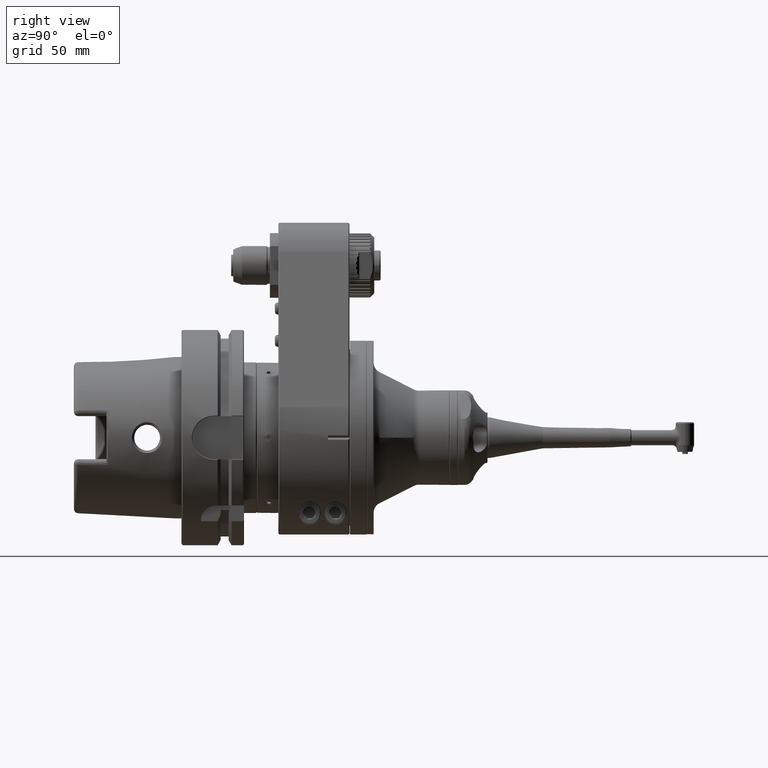
[diagram: clean part render]
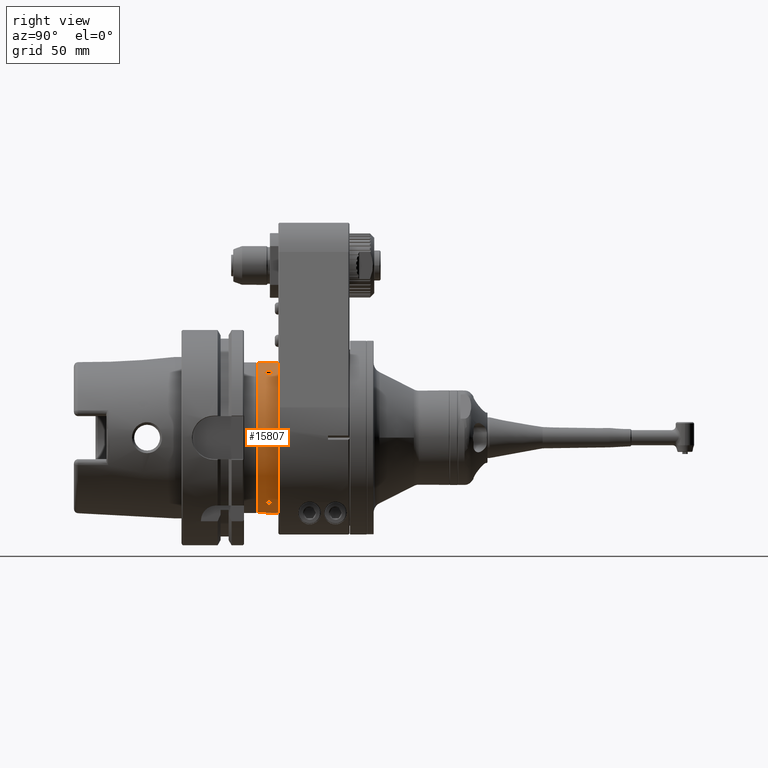
[diagram: same view with one face highlighted and labeled with its STEP entity id]
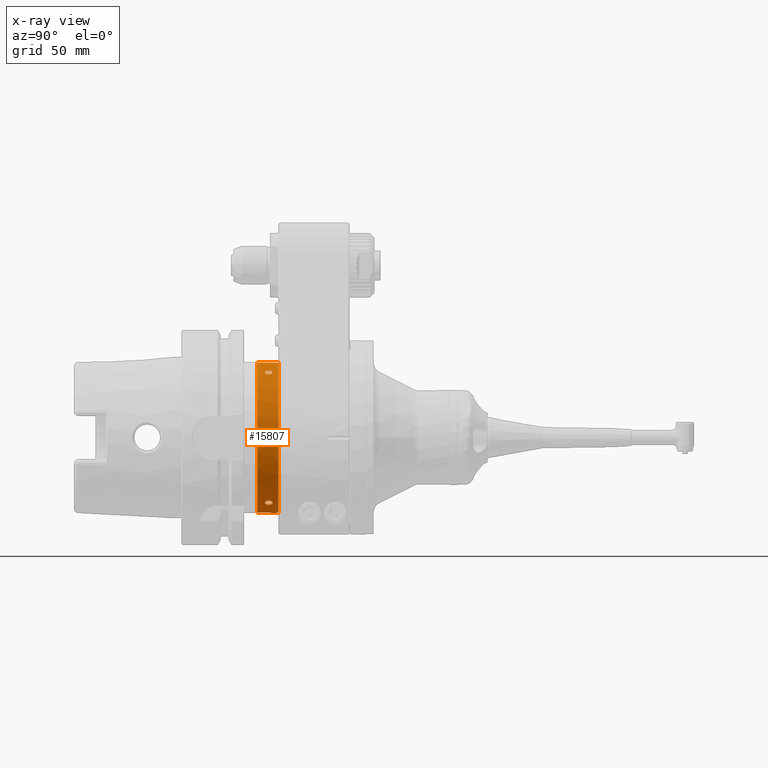
[diagram: x-ray of the same camera — body ghosted, the highlighted face saturated]
A machine part, right view. The second image highlights one B-rep face of the part: STEP entity #15807.
The next image is the same camera in x-ray: the body ghosted, the highlighted face saturated — about 0% of this face is hidden behind the body in this view.
In plain terms, the highlighted cylindrical surface (bore or boss wall) has radius 35 mm, axis along (0, 1, 0).
Its self-contained STEP definition (entity closure, byte-faithful):
#261=B_SPLINE_CURVE_WITH_KNOTS('',3,(#34498,#34499,#34500,#34501,#34502,
#34503,#34504,#34505,#34506,#34507,#34508,#34509,#34510,#34511,#34512,#34513,
#34514,#34515,#34516,#34517,#34518,#34519),.UNSPECIFIED.,.F.,.F.,(4,2,2,
2,2,2,2,2,2,2,4),(3.18527059466299E-5,0.0364021426824068,0.0739642590765193,
0.145595379017251,0.211201769634301,0.270477913188012,0.329729610222051,
0.389526671753702,0.460681832275728,0.509007877803127,0.556186606981776),
 .UNSPECIFIED.);
#262=B_SPLINE_CURVE_WITH_KNOTS('',3,(#34581,#34582,#34583,#34584,#34585,
#34586,#34587,#34588,#34589,#34590,#34591,#34592,#34593,#34594,#34595,#34596,
#34597,#34598,#34599,#34600,#34601,#34602),.UNSPECIFIED.,.F.,.F.,(4,2,2,
2,2,2,2,2,2,2,4),(3.18527063007448E-5,0.0364021426830109,0.073964259080203,
0.145595379027305,0.211201769644796,0.27047791318617,0.329729610207649,
0.38952667173139,0.460681832241208,0.509007877760784,0.556186606938202),
 .UNSPECIFIED.);
#269=B_SPLINE_CURVE_WITH_KNOTS('',3,(#34771,#34772,#34773,#34774,#34775,
#34776,#34777,#34778,#34779,#34780,#34781,#34782,#34783,#34784,#34785,#34786,
#34787,#34788,#34789,#34790),.UNSPECIFIED.,.F.,.F.,(4,2,2,2,2,2,2,2,2,4),
(3.19623823072239E-5,0.0710781441032911,0.138331762059328,0.199249713175933,
0.253463337707416,0.280618598549734,0.342315869599669,0.413579170136001,
0.452989020168033,0.484551900344419),.UNSPECIFIED.);
#270=B_SPLINE_CURVE_WITH_KNOTS('',3,(#34791,#34792,#34793,#34794,#34795,
#34796,#34797,#34798,#34799,#34800,#34801,#34802,#34803,#34804,#34805,#34806,
#34807,#34808,#34809,#34810,#34811,#34812),.UNSPECIFIED.,.F.,.F.,(4,2,2,
2,2,2,2,2,2,2,4),(2.08355603823118E-5,0.055145218950107,0.110008349002542,
0.182441860163828,0.255200873313432,0.291585468762988,0.364355406522232,
0.438177843075077,0.526261772112238,0.585860508728857,0.643977540634159),
 .UNSPECIFIED.);
#271=B_SPLINE_CURVE_WITH_KNOTS('',3,(#34815,#34816,#34817,#34818,#34819,
#34820,#34821,#34822,#34823,#34824,#34825,#34826,#34827,#34828,#34829,#34830,
#34831,#34832,#34833,#34834,#34835,#34836),.UNSPECIFIED.,.F.,.F.,(4,2,2,
2,2,2,2,2,2,2,4),(3.18527059499658E-5,0.0364021426824138,0.0739642590765483,
0.145595379017325,0.211201769634381,0.270477913188123,0.329729610222192,
0.389526671753814,0.460681832275834,0.509007877803275,0.556186606981961),
 .UNSPECIFIED.);
#272=B_SPLINE_CURVE_WITH_KNOTS('',3,(#34837,#34838,#34839,#34840,#34841,
#34842,#34843,#34844,#34845,#34846,#34847,#34848,#34849,#34850,#34851,#34852,
#34853,#34854,#34855,#34856,#34857,#34858),.UNSPECIFIED.,.F.,.F.,(4,2,2,
2,2,2,2,2,2,2,4),(3.18527063025162E-5,0.0364021426830279,0.0739642590802675,
0.145595379027454,0.211201769645015,0.27047791318649,0.329729610208068,
0.389526671731864,0.460681832241739,0.509007877761344,0.55618660693878),
 .UNSPECIFIED.);
#273=B_SPLINE_CURVE_WITH_KNOTS('',3,(#34861,#34862,#34863,#34864,#34865,
#34866,#34867,#34868,#34869,#34870,#34871,#34872,#34873,#34874,#34875,#34876,
#34877,#34878,#34879,#34880,#34881,#34882),.UNSPECIFIED.,.F.,.F.,(4,2,2,
2,2,2,2,2,2,2,4),(1.74782584528616E-5,0.0553472891500618,0.110195632901883,
0.182733622412185,0.255683203915886,0.292162697366789,0.365135586462819,
0.439146682116441,0.527453580150855,0.587185976653204,0.645439667455737),
 .UNSPECIFIED.);
#274=B_SPLINE_CURVE_WITH_KNOTS('',3,(#34883,#34884,#34885,#34886,#34887,
#34888,#34889,#34890,#34891,#34892,#34893,#34894,#34895,#34896,#34897,#34898,
#34899,#34900,#34901,#34902),.UNSPECIFIED.,.F.,.F.,(4,2,2,2,2,2,2,2,2,4),
(3.18681131328793E-5,0.0711049641529281,0.138375121400666,0.19934554231586,
0.253643689411755,0.280837672626704,0.341585807032831,0.409786467284119,
0.460897768256239,0.51175460419416),.UNSPECIFIED.);
#275=B_SPLINE_CURVE_WITH_KNOTS('',3,(#34905,#34906,#34907,#34908,#34909,
#34910,#34911,#34912,#34913,#34914,#34915,#34916,#34917,#34918,#34919,#34920,
#34921,#34922,#34923,#34924),.UNSPECIFIED.,.F.,.F.,(4,2,2,2,2,2,2,2,2,4),
(3.19623823076684E-5,0.0710781441033162,0.138331762059385,0.199249713175965,
0.253463337707427,0.280618598549735,0.342315869598999,0.413579170133061,
0.452989020163951,0.484551900339308),.UNSPECIFIED.);
#276=B_SPLINE_CURVE_WITH_KNOTS('',3,(#34925,#34926,#34927,#34928,#34929,
#34930,#34931,#34932,#34933,#34934,#34935,#34936,#34937,#34938,#34939,#34940,
#34941,#34942,#34943,#34944,#34945,#34946),.UNSPECIFIED.,.F.,.F.,(4,2,2,
2,2,2,2,2,2,2,4),(2.08355603949333E-5,0.0551452189501111,0.110008349001833,
0.182441860161529,0.255200873311195,0.291585468760671,0.364355406519829,
0.438177843072464,0.526261772108252,0.585860508722684,0.643977540624774),
 .UNSPECIFIED.);
#277=B_SPLINE_CURVE_WITH_KNOTS('',3,(#34949,#34950,#34951,#34952,#34953,
#34954,#34955,#34956,#34957,#34958,#34959,#34960,#34961,#34962,#34963,#34964,
#34965,#34966,#34967,#34968,#34969,#34970),.UNSPECIFIED.,.F.,.F.,(4,2,2,
2,2,2,2,2,2,2,4),(1.74782584537637E-5,0.0553472891497542,0.110195632901252,
0.182733622413057,0.255683203916134,0.292162697366703,0.36513558646184,
0.439146682114657,0.527453580148122,0.587185976649858,0.645439667451797),
 .UNSPECIFIED.);
#278=B_SPLINE_CURVE_WITH_KNOTS('',3,(#34971,#34972,#34973,#34974,#34975,
#34976,#34977,#34978,#34979,#34980,#34981,#34982,#34983,#34984,#34985,#34986,
#34987,#34988,#34989,#34990),.UNSPECIFIED.,.F.,.F.,(4,2,2,2,2,2,2,2,2,4),
(3.18681131313249E-5,0.0711049641529291,0.138375121400669,0.199345542315811,
0.253643689411589,0.280837672626518,0.341585807031414,0.409786467278439,
0.460897768248773,0.511754604184717),.UNSPECIFIED.);
#1496=LINE('',#34758,#2630);
#1497=LINE('',#34762,#2631);
#1498=LINE('',#34765,#2632);
#2630=VECTOR('',#21495,1.);
#2631=VECTOR('',#21498,1.);
#2632=VECTOR('',#21501,35.);
#3066=CYLINDRICAL_SURFACE('',#17461,35.);
#3197=FACE_BOUND('',#4918,.T.);
#3198=FACE_BOUND('',#4919,.T.);
#3199=FACE_BOUND('',#4920,.T.);
#3200=FACE_BOUND('',#4921,.T.);
#3201=FACE_BOUND('',#4922,.T.);
#3202=FACE_BOUND('',#4923,.T.);
#3914=FACE_OUTER_BOUND('',#4917,.T.);
#4917=EDGE_LOOP('',(#13540,#13541,#13542,#13543,#13544,#13545,#13546,#13547,
#13548));
#4918=EDGE_LOOP('',(#13549,#13550));
#4919=EDGE_LOOP('',(#13551,#13552));
#4920=EDGE_LOOP('',(#13553,#13554));
#4921=EDGE_LOOP('',(#13555,#13556));
#4922=EDGE_LOOP('',(#13557,#13558));
#4923=EDGE_LOOP('',(#13559,#13560));
#5886=CIRCLE('',#17462,35.);
#5887=CIRCLE('',#17463,35.);
#5888=CIRCLE('',#17464,35.);
#5889=CIRCLE('',#17465,35.);
#5890=CIRCLE('',#17466,35.);
#7201=VERTEX_POINT('',#34495);
#7202=VERTEX_POINT('',#34497);
#7216=VERTEX_POINT('',#34754);
#7217=VERTEX_POINT('',#34755);
#7218=VERTEX_POINT('',#34757);
#7219=VERTEX_POINT('',#34759);
#7220=VERTEX_POINT('',#34761);
#7221=VERTEX_POINT('',#34764);
#7222=VERTEX_POINT('',#34766);
#7223=VERTEX_POINT('',#34769);
#7224=VERTEX_POINT('',#34770);
#7225=VERTEX_POINT('',#34813);
#7226=VERTEX_POINT('',#34814);
#7227=VERTEX_POINT('',#34859);
#7228=VERTEX_POINT('',#34860);
#7229=VERTEX_POINT('',#34903);
#7230=VERTEX_POINT('',#34904);
#7231=VERTEX_POINT('',#34947);
#7232=VERTEX_POINT('',#34948);
#9353=EDGE_CURVE('',#7202,#7201,#261,.T.);
#9355=EDGE_CURVE('',#7201,#7202,#262,.T.);
#9376=EDGE_CURVE('',#7216,#7217,#5886,.T.);
#9377=EDGE_CURVE('',#7218,#7216,#1496,.T.);
#9378=EDGE_CURVE('',#7219,#7218,#5887,.T.);
#9379=EDGE_CURVE('',#7219,#7220,#1497,.T.);
#9380=EDGE_CURVE('',#7217,#7220,#5888,.T.);
#9381=EDGE_CURVE('',#7217,#7221,#1498,.T.);
#9382=EDGE_CURVE('',#7221,#7222,#5889,.T.);
#9383=EDGE_CURVE('',#7222,#7221,#5890,.T.);
#9384=EDGE_CURVE('',#7223,#7224,#269,.T.);
#9385=EDGE_CURVE('',#7224,#7223,#270,.T.);
#9386=EDGE_CURVE('',#7225,#7226,#271,.T.);
#9387=EDGE_CURVE('',#7226,#7225,#272,.T.);
#9388=EDGE_CURVE('',#7227,#7228,#273,.T.);
#9389=EDGE_CURVE('',#7228,#7227,#274,.T.);
#9390=EDGE_CURVE('',#7229,#7230,#275,.T.);
#9391=EDGE_CURVE('',#7230,#7229,#276,.T.);
#9392=EDGE_CURVE('',#7231,#7232,#277,.T.);
#9393=EDGE_CURVE('',#7232,#7231,#278,.T.);
#13540=ORIENTED_EDGE('',*,*,#9376,.F.);
#13541=ORIENTED_EDGE('',*,*,#9377,.F.);
#13542=ORIENTED_EDGE('',*,*,#9378,.F.);
#13543=ORIENTED_EDGE('',*,*,#9379,.T.);
#13544=ORIENTED_EDGE('',*,*,#9380,.F.);
#13545=ORIENTED_EDGE('',*,*,#9381,.T.);
#13546=ORIENTED_EDGE('',*,*,#9382,.T.);
#13547=ORIENTED_EDGE('',*,*,#9383,.T.);
#13548=ORIENTED_EDGE('',*,*,#9381,.F.);
#13549=ORIENTED_EDGE('',*,*,#9384,.T.);
#13550=ORIENTED_EDGE('',*,*,#9385,.T.);
#13551=ORIENTED_EDGE('',*,*,#9386,.T.);
#13552=ORIENTED_EDGE('',*,*,#9387,.T.);
#13553=ORIENTED_EDGE('',*,*,#9388,.T.);
#13554=ORIENTED_EDGE('',*,*,#9389,.T.);
#13555=ORIENTED_EDGE('',*,*,#9353,.T.);
#13556=ORIENTED_EDGE('',*,*,#9355,.T.);
#13557=ORIENTED_EDGE('',*,*,#9390,.T.);
#13558=ORIENTED_EDGE('',*,*,#9391,.T.);
#13559=ORIENTED_EDGE('',*,*,#9392,.T.);
#13560=ORIENTED_EDGE('',*,*,#9393,.T.);
#15807=ADVANCED_FACE('',(#3914,#3197,#3198,#3199,#3200,#3201,#3202),#3066,
 .T.);
#17461=AXIS2_PLACEMENT_3D('',#34753,#21491,#21492);
#17462=AXIS2_PLACEMENT_3D('',#34756,#21493,#21494);
#17463=AXIS2_PLACEMENT_3D('',#34760,#21496,#21497);
#17464=AXIS2_PLACEMENT_3D('',#34763,#21499,#21500);
#17465=AXIS2_PLACEMENT_3D('',#34767,#21502,#21503);
#17466=AXIS2_PLACEMENT_3D('',#34768,#21504,#21505);
#21491=DIRECTION('center_axis',(0.,1.,0.));
#21492=DIRECTION('ref_axis',(0.866025403784429,0.,0.500000000000017));
#21493=DIRECTION('center_axis',(0.,1.,0.));
#21494=DIRECTION('ref_axis',(-0.0571428571428572,0.,-0.998366011980351));
#21495=DIRECTION('',(0.,1.,0.));
#21496=DIRECTION('center_axis',(0.,1.,0.));
#21497=DIRECTION('ref_axis',(0.0571428571428572,0.,-0.998366011980351));
#21498=DIRECTION('',(0.,1.,0.));
#21499=DIRECTION('center_axis',(0.,1.,0.));
#21500=DIRECTION('ref_axis',(-0.0571428571428572,0.,-0.998366011980351));
#21501=DIRECTION('',(0.,-1.,0.));
#21502=DIRECTION('center_axis',(0.,1.,0.));
#21503=DIRECTION('ref_axis',(0.866025403784429,0.,0.500000000000017));
#21504=DIRECTION('center_axis',(0.,1.,0.));
#21505=DIRECTION('ref_axis',(0.866025403784429,0.,0.500000000000017));
#34495=CARTESIAN_POINT('',(15.8637257306997,-12.5000001981343,-31.1984327457779));
#34497=CARTESIAN_POINT('',(19.0867724507528,-12.4999998018656,-29.3376058543446));
#34498=CARTESIAN_POINT('Ctrl Pts',(19.0870952570168,-12.4999996391597,-29.3373958396032));
#34499=CARTESIAN_POINT('Ctrl Pts',(19.0870487294581,-12.3787646004269,-29.3374261107271));
#34500=CARTESIAN_POINT('Ctrl Pts',(19.0765279758062,-12.2571064872472,-29.3442781244858));
#34501=CARTESIAN_POINT('Ctrl Pts',(19.035526607172,-12.0153749482575,-29.3708927948349));
#34502=CARTESIAN_POINT('Ctrl Pts',(19.0042892602779,-11.8948129765833,-29.3911448140096));
#34503=CARTESIAN_POINT('Ctrl Pts',(18.8844959382057,-11.559428125439,-29.4683653237602));
#34504=CARTESIAN_POINT('Ctrl Pts',(18.7701348385507,-11.3594772313313,-29.5416804792462));
#34505=CARTESIAN_POINT('Ctrl Pts',(18.4946369193482,-11.0368369067039,-29.7148549400748));
#34506=CARTESIAN_POINT('Ctrl Pts',(18.3232816174536,-10.8912835220462,-29.8214637559547));
#34507=CARTESIAN_POINT('Ctrl Pts',(17.916546743802,-10.6969003969063,-30.0673951480377));
#34508=CARTESIAN_POINT('Ctrl Pts',(17.7088313683342,-10.6497418116776,-30.1903376099477));
#34509=CARTESIAN_POINT('Ctrl Pts',(17.2875004176122,-10.6502651980211,-30.4335583514486));
#34510=CARTESIAN_POINT('Ctrl Pts',(17.0775550327571,-10.6979256194026,-30.5517241087551));
#34511=CARTESIAN_POINT('Ctrl Pts',(16.6811183530208,-10.8841169118027,-30.7699847350976));
#34512=CARTESIAN_POINT('Ctrl Pts',(16.4995459148085,-11.0212928473367,-30.867378293489));
#34513=CARTESIAN_POINT('Ctrl Pts',(16.1638212106934,-11.3996202863482,-31.0447007580497));
#34514=CARTESIAN_POINT('Ctrl Pts',(16.0562358284755,-11.6167350350512,-31.0998773639482));
#34515=CARTESIAN_POINT('Ctrl Pts',(15.9497689785468,-11.8991265025051,-31.1545697005922));
#34516=CARTESIAN_POINT('Ctrl Pts',(15.9172255648133,-12.0177974284735,-31.1711808899257));
#34517=CARTESIAN_POINT('Ctrl Pts',(15.8745400947412,-12.2581699470093,-31.1929404987322));
#34518=CARTESIAN_POINT('Ctrl Pts',(15.8640273718801,-12.3789443166372,-31.1982793683629));
#34519=CARTESIAN_POINT('Ctrl Pts',(15.8640690119373,-12.5000000354284,-31.1982581947212));
#34581=CARTESIAN_POINT('Ctrl Pts',(15.8633824494621,-12.5000003608403,-31.1986072968345));
#34582=CARTESIAN_POINT('Ctrl Pts',(15.8634319288059,-12.6212353995739,-31.1985821383476));
#34583=CARTESIAN_POINT('Ctrl Pts',(15.8746263236218,-12.7428935127624,-31.1928969052934));
#34584=CARTESIAN_POINT('Ctrl Pts',(15.9181759885768,-12.9846250517447,-31.1706960136397));
#34585=CARTESIAN_POINT('Ctrl Pts',(15.9513334251062,-13.1051870234197,-31.1537696872704));
#34586=CARTESIAN_POINT('Ctrl Pts',(16.0781050092787,-13.4405718745698,-31.0886358820278));
#34587=CARTESIAN_POINT('Ctrl Pts',(16.1987783462417,-13.6405227686771,-31.0262538422637));
#34588=CARTESIAN_POINT('Ctrl Pts',(16.486500788188,-13.9631630932841,-30.8742528759689));
#34589=CARTESIAN_POINT('Ctrl Pts',(16.6645043819524,-14.1087164779524,-30.7791592393967));
#34590=CARTESIAN_POINT('Ctrl Pts',(17.0808546519339,-14.3030996030938,-30.5498822022375));
#34591=CARTESIAN_POINT('Ctrl Pts',(17.2911836348838,-14.3502581883251,-30.4314666412822));
#34592=CARTESIAN_POINT('Ctrl Pts',(17.7124844510981,-14.3497348019843,-30.1881937053147));
#34593=CARTESIAN_POINT('Ctrl Pts',(17.9197916912023,-14.3020743806033,-30.0654585472806));
#34594=CARTESIAN_POINT('Ctrl Pts',(18.3070292781214,-14.1158830882152,-29.8312646248132));
#34595=CARTESIAN_POINT('Ctrl Pts',(18.482160792963,-13.978707152683,-29.722715059888));
#34596=CARTESIAN_POINT('Ctrl Pts',(18.8035889039929,-13.600379713676,-29.5206301697262));
#34597=CARTESIAN_POINT('Ctrl Pts',(18.9051659375053,-13.3832649649784,-29.4550467985985));
#34598=CARTESIAN_POINT('Ctrl Pts',(19.0057643154029,-13.1008734975193,-29.3901899702167));
#34599=CARTESIAN_POINT('Ctrl Pts',(19.0364217342231,-12.9822025715473,-29.3703121418621));
#34600=CARTESIAN_POINT('Ctrl Pts',(19.0766088432686,-12.7418300529884,-29.3442252448061));
#34601=CARTESIAN_POINT('Ctrl Pts',(19.086488801421,-12.6210556833701,-29.3377903945647));
#34602=CARTESIAN_POINT('Ctrl Pts',(19.0864496444889,-12.4999999645715,-29.3378158690859));
#34753=CARTESIAN_POINT('Origin',(0.,-18.85,2.285324009082E-14));
#34754=CARTESIAN_POINT('',(-2.,-8.,-34.94281041931));
#34755=CARTESIAN_POINT('',(-30.310889132455,-8.,-17.5000000000006));
#34756=CARTESIAN_POINT('Origin',(0.,-8.,2.285324009082E-14));
#34757=CARTESIAN_POINT('',(-2.,-9.,-34.94281041931));
#34758=CARTESIAN_POINT('',(-2.,-9.,-34.94281041931));
#34759=CARTESIAN_POINT('',(2.,-9.,-34.94281041931));
#34760=CARTESIAN_POINT('Origin',(0.,-9.,2.285324009082E-14));
#34761=CARTESIAN_POINT('',(2.,-8.,-34.94281041931));
#34762=CARTESIAN_POINT('',(2.,-9.,-34.94281041931));
#34763=CARTESIAN_POINT('Origin',(0.,-8.,2.285324009082E-14));
#34764=CARTESIAN_POINT('',(-30.310889132455,-17.79999673147,-17.5000000000006));
#34765=CARTESIAN_POINT('',(-30.310889132455,-18.85,-17.5000000000006));
#34766=CARTESIAN_POINT('',(30.31088913246,-17.79999673147,17.5));
#34767=CARTESIAN_POINT('Origin',(0.,-17.79999673147,2.285324009082E-14));
#34768=CARTESIAN_POINT('Origin',(0.,-17.79999673147,2.285324009082E-14));
#34769=CARTESIAN_POINT('',(-34.9504995080757,-12.499999630987,-1.86080197631837));
#34770=CARTESIAN_POINT('',(-34.950500565016,-12.4999996411465,1.86078214509157));
#34771=CARTESIAN_POINT('Ctrl Pts',(-34.950477048689,-12.4999994530855,-1.8612238095038));
#34772=CARTESIAN_POINT('Ctrl Pts',(-34.9504835154797,-12.2631689596259,
-1.86110237466178));
#34773=CARTESIAN_POINT('Ctrl Pts',(-34.9531350429122,-12.0153405241427,
-1.81329910251574));
#34774=CARTESIAN_POINT('Ctrl Pts',(-34.9625302693398,-11.5619045701655,
-1.62178045911963));
#34775=CARTESIAN_POINT('Ctrl Pts',(-34.9688430283354,-11.3614905413128,
-1.48626842043907));
#34776=CARTESIAN_POINT('Ctrl Pts',(-34.9810425090177,-11.0392351171275,
-1.16208398610917));
#34777=CARTESIAN_POINT('Ctrl Pts',(-34.9877184703275,-10.8926447383117,
-0.960659343513235));
#34778=CARTESIAN_POINT('Ctrl Pts',(-34.9973528271568,-10.69786608224,-0.485218350219374));
#34779=CARTESIAN_POINT('Ctrl Pts',(-34.9999810584443,-10.6503161824768,
-0.244972219121741));
#34780=CARTESIAN_POINT('Ctrl Pts',(-35.0000093289152,-10.6498402301652,
0.118620561119193));
#34781=CARTESIAN_POINT('Ctrl Pts',(-34.9993798873961,-10.661528955052,0.239932462510429));
#34782=CARTESIAN_POINT('Ctrl Pts',(-34.995387052904,-10.7375552708006,0.629269733741858));
#34783=CARTESIAN_POINT('Ctrl Pts',(-34.9900075276982,-10.8434805887279,
0.854524394146732));
#34784=CARTESIAN_POINT('Ctrl Pts',(-34.9788697447253,-11.0931735862729,
1.2328075379017));
#34785=CARTESIAN_POINT('Ctrl Pts',(-34.9720164766439,-11.2642471721499,
1.40598971852487));
#34786=CARTESIAN_POINT('Ctrl Pts',(-34.9626444523335,-11.5779518755563,
1.61840205214398));
#34787=CARTESIAN_POINT('Ctrl Pts',(-34.9581108191775,-11.7427112518436,
1.71317440593236));
#34788=CARTESIAN_POINT('Ctrl Pts',(-34.9519815054583,-12.1355944194539,
1.83353797556643));
#34789=CARTESIAN_POINT('Ctrl Pts',(-34.9505139966159,-12.3172238302253,
1.86052986393553));
#34790=CARTESIAN_POINT('Ctrl Pts',(-34.950516510764,-12.4999996163523,1.86048263383738));
#34791=CARTESIAN_POINT('Ctrl Pts',(-34.9504893409757,-12.4999996585988,
1.86099296783787));
#34792=CARTESIAN_POINT('Ctrl Pts',(-34.9504884755683,-12.6837474284534,
1.86100922067443));
#34793=CARTESIAN_POINT('Ctrl Pts',(-34.9520213741184,-12.8672676266707,
1.83279760209075));
#34794=CARTESIAN_POINT('Ctrl Pts',(-34.9575239478522,-13.2174772843669,
1.72465555171186));
#34795=CARTESIAN_POINT('Ctrl Pts',(-34.9614581685939,-13.3831049934662,
1.64532180531264));
#34796=CARTESIAN_POINT('Ctrl Pts',(-34.9720049824187,-13.7352971773744,
1.40620619181317));
#34797=CARTESIAN_POINT('Ctrl Pts',(-34.9788916079813,-13.9070803487411,
1.23202472333098));
#34798=CARTESIAN_POINT('Ctrl Pts',(-34.9908016024159,-14.1745258261827,
0.827594869135722));
#34799=CARTESIAN_POINT('Ctrl Pts',(-34.9956632095359,-14.2677009155518,
0.60044431579424));
#34800=CARTESIAN_POINT('Ctrl Pts',(-34.9993641476223,-14.3381775287248,
0.242399381943312));
#34801=CARTESIAN_POINT('Ctrl Pts',(-35.0000031889335,-14.3500063236869,
0.120728234629732));
#34802=CARTESIAN_POINT('Ctrl Pts',(-34.9999935857192,-14.3499304850854,
-0.244221912226578));
#34803=CARTESIAN_POINT('Ctrl Pts',(-34.9973694440576,-14.302465914789,-0.484313214537465));
#34804=CARTESIAN_POINT('Ctrl Pts',(-34.988207984965,-14.1171851455121,-0.936588778960121));
#34805=CARTESIAN_POINT('Ctrl Pts',(-34.9817713989937,-13.980176450906,-1.14274357210531));
#34806=CARTESIAN_POINT('Ctrl Pts',(-34.967438196524,-13.6013625095778,-1.52356544941006));
#34807=CARTESIAN_POINT('Ctrl Pts',(-34.9614179207507,-13.3840127550484,
-1.64450104664918));
#34808=CARTESIAN_POINT('Ctrl Pts',(-34.9555321136317,-13.1007763499867,
-1.76440406169629));
#34809=CARTESIAN_POINT('Ctrl Pts',(-34.9536453717128,-12.9820174019721,
-1.80090619245004));
#34810=CARTESIAN_POINT('Ctrl Pts',(-34.9511480917957,-12.7416745993173,
-1.84873093849571));
#34811=CARTESIAN_POINT('Ctrl Pts',(-34.9505151545311,-12.6209661760245,
-1.86050811189774));
#34812=CARTESIAN_POINT('Ctrl Pts',(-34.9505172454797,-12.4999997714854,
-1.86046883161861));
#34813=CARTESIAN_POINT('',(-19.0867724507529,-12.4999998018656,29.3376058543446));
#34814=CARTESIAN_POINT('',(-15.8637257306996,-12.5000001981343,31.1984327457779));
#34815=CARTESIAN_POINT('Ctrl Pts',(-19.0870952570168,-12.4999996391596,
29.3373958396032));
#34816=CARTESIAN_POINT('Ctrl Pts',(-19.0870487294581,-12.3787646004269,
29.3374261107271));
#34817=CARTESIAN_POINT('Ctrl Pts',(-19.0765279758062,-12.2571064872472,
29.3442781244858));
#34818=CARTESIAN_POINT('Ctrl Pts',(-19.035526607172,-12.0153749482575,29.3708927948349));
#34819=CARTESIAN_POINT('Ctrl Pts',(-19.0042892602779,-11.8948129765833,
29.3911448140097));
#34820=CARTESIAN_POINT('Ctrl Pts',(-18.8844959382057,-11.5594281254389,
29.4683653237602));
#34821=CARTESIAN_POINT('Ctrl Pts',(-18.7701348385507,-11.3594772313312,
29.5416804792463));
#34822=CARTESIAN_POINT('Ctrl Pts',(-18.4946369193483,-11.036836906704,29.7148549400748));
#34823=CARTESIAN_POINT('Ctrl Pts',(-18.3232816174537,-10.8912835220462,
29.8214637559547));
#34824=CARTESIAN_POINT('Ctrl Pts',(-17.9165467438019,-10.6969003969062,
30.0673951480379));
#34825=CARTESIAN_POINT('Ctrl Pts',(-17.7088313683341,-10.6497418116776,
30.1903376099477));
#34826=CARTESIAN_POINT('Ctrl Pts',(-17.2875004176123,-10.6502651980211,
30.4335583514485));
#34827=CARTESIAN_POINT('Ctrl Pts',(-17.0775550327573,-10.6979256194024,
30.5517241087551));
#34828=CARTESIAN_POINT('Ctrl Pts',(-16.6811183530208,-10.8841169118026,
30.7699847350976));
#34829=CARTESIAN_POINT('Ctrl Pts',(-16.4995459148085,-11.0212928473366,
30.867378293489));
#34830=CARTESIAN_POINT('Ctrl Pts',(-16.1638212106934,-11.3996202863482,
31.0447007580498));
#34831=CARTESIAN_POINT('Ctrl Pts',(-16.0562358284755,-11.6167350350513,
31.0998773639483));
#34832=CARTESIAN_POINT('Ctrl Pts',(-15.9497689785468,-11.8991265025051,
31.1545697005922));
#34833=CARTESIAN_POINT('Ctrl Pts',(-15.9172255648132,-12.0177974284736,
31.1711808899257));
#34834=CARTESIAN_POINT('Ctrl Pts',(-15.8745400947412,-12.2581699470093,
31.1929404987322));
#34835=CARTESIAN_POINT('Ctrl Pts',(-15.8640273718801,-12.3789443166372,
31.198279368363));
#34836=CARTESIAN_POINT('Ctrl Pts',(-15.8640690119372,-12.5000000354284,
31.1982581947213));
#34837=CARTESIAN_POINT('Ctrl Pts',(-15.8633824494621,-12.5000003608403,
31.1986072968346));
#34838=CARTESIAN_POINT('Ctrl Pts',(-15.8634319288059,-12.6212353995739,
31.1985821383476));
#34839=CARTESIAN_POINT('Ctrl Pts',(-15.8746263236218,-12.7428935127625,
31.1928969052935));
#34840=CARTESIAN_POINT('Ctrl Pts',(-15.9181759885768,-12.9846250517446,
31.1706960136397));
#34841=CARTESIAN_POINT('Ctrl Pts',(-15.9513334251062,-13.1051870234197,
31.1537696872705));
#34842=CARTESIAN_POINT('Ctrl Pts',(-16.0781050092787,-13.4405718745698,
31.0886358820278));
#34843=CARTESIAN_POINT('Ctrl Pts',(-16.1987783462417,-13.6405227686772,
31.0262538422637));
#34844=CARTESIAN_POINT('Ctrl Pts',(-16.486500788188,-13.9631630932841,30.874252875969));
#34845=CARTESIAN_POINT('Ctrl Pts',(-16.6645043819524,-14.1087164779524,
30.7791592393968));
#34846=CARTESIAN_POINT('Ctrl Pts',(-17.080854651934,-14.3030996030939,30.5498822022375));
#34847=CARTESIAN_POINT('Ctrl Pts',(-17.2911836348838,-14.3502581883251,
30.4314666412822));
#34848=CARTESIAN_POINT('Ctrl Pts',(-17.712484451098,-14.3497348019843,30.1881937053147));
#34849=CARTESIAN_POINT('Ctrl Pts',(-17.9197916912022,-14.3020743806034,
30.0654585472807));
#34850=CARTESIAN_POINT('Ctrl Pts',(-18.3070292781215,-14.1158830882152,
29.8312646248132));
#34851=CARTESIAN_POINT('Ctrl Pts',(-18.482160792963,-13.978707152683,29.722715059888));
#34852=CARTESIAN_POINT('Ctrl Pts',(-18.803588903993,-13.6003797136761,29.5206301697262));
#34853=CARTESIAN_POINT('Ctrl Pts',(-18.9051659375054,-13.3832649649785,
29.4550467985985));
#34854=CARTESIAN_POINT('Ctrl Pts',(-19.0057643154029,-13.1008734975193,
29.3901899702167));
#34855=CARTESIAN_POINT('Ctrl Pts',(-19.0364217342231,-12.9822025715473,
29.3703121418621));
#34856=CARTESIAN_POINT('Ctrl Pts',(-19.0766088432687,-12.7418300529884,
29.3442252448061));
#34857=CARTESIAN_POINT('Ctrl Pts',(-19.0864888014211,-12.6210556833701,
29.3377903945647));
#34858=CARTESIAN_POINT('Ctrl Pts',(-19.0864496444889,-12.4999999645715,
29.3378158690859));
#34859=CARTESIAN_POINT('',(15.8638764454773,-12.5000005512585,31.1983561117099));
#34860=CARTESIAN_POINT('',(19.0867500527332,-12.5000003552244,29.3376204264053));
#34861=CARTESIAN_POINT('Ctrl Pts',(15.8637133528312,-12.500000513418,31.1984390420291));
#34862=CARTESIAN_POINT('Ctrl Pts',(15.8636990733624,-12.3155682170916,31.1984463028218));
#34863=CARTESIAN_POINT('Ctrl Pts',(15.8888303282584,-12.1317757719449,31.1857026931762));
#34864=CARTESIAN_POINT('Ctrl Pts',(15.985637379186,-11.7811249485307,31.1361899978587));
#34865=CARTESIAN_POINT('Ctrl Pts',(16.0562915777425,-11.6160603194448,31.0999375188259));
#34866=CARTESIAN_POINT('Ctrl Pts',(16.2685689435502,-11.2642274257483,30.9895502888459));
#34867=CARTESIAN_POINT('Ctrl Pts',(16.4228623129554,-11.0926027440004,30.9084173887881));
#34868=CARTESIAN_POINT('Ctrl Pts',(16.7789614499093,-10.8253063759883,30.7165686163151));
#34869=CARTESIAN_POINT('Ctrl Pts',(16.9781197041411,-10.7321924752516,30.6071954890569));
#34870=CARTESIAN_POINT('Ctrl Pts',(17.2900094149281,-10.6617879420451,30.4313952884602));
#34871=CARTESIAN_POINT('Ctrl Pts',(17.395684683828,-10.6499780912733,30.3711203024888));
#34872=CARTESIAN_POINT('Ctrl Pts',(17.7117247422975,-10.6501019422287,30.1886403369981));
#34873=CARTESIAN_POINT('Ctrl Pts',(17.9183445533407,-10.6976034288396,30.0663159576823));
#34874=CARTESIAN_POINT('Ctrl Pts',(18.3053968887711,-10.882945772207,29.8322697196292));
#34875=CARTESIAN_POINT('Ctrl Pts',(18.4806837186713,-11.0199637619296,29.7236355419428));
#34876=CARTESIAN_POINT('Ctrl Pts',(18.8032464324207,-11.3987786654595,29.5208551598909));
#34877=CARTESIAN_POINT('Ctrl Pts',(18.9049510830728,-11.6161230467451,29.4551854426468));
#34878=CARTESIAN_POINT('Ctrl Pts',(19.0058176101693,-11.8993436766261,29.3901555257972));
#34879=CARTESIAN_POINT('Ctrl Pts',(19.0364722168175,-12.0180713669705,29.3702794149571));
#34880=CARTESIAN_POINT('Ctrl Pts',(19.0766256975269,-12.258365139105,29.344214261916));
#34881=CARTESIAN_POINT('Ctrl Pts',(19.0865040416201,-12.3790524020513,29.3377804796278));
#34882=CARTESIAN_POINT('Ctrl Pts',(19.0864703802306,-12.5000002138496,29.3378023789203));
#34883=CARTESIAN_POINT('Ctrl Pts',(19.0871034196069,-12.5000005338517,29.3373905289689));
#34884=CARTESIAN_POINT('Ctrl Pts',(19.0870017449956,-12.7369206743721,29.3374566791542));
#34885=CARTESIAN_POINT('Ctrl Pts',(19.0469054805378,-12.9848003492369,29.3636697781654));
#34886=CARTESIAN_POINT('Ctrl Pts',(18.8856846825682,-13.4382659674928,29.4676027843206));
#34887=CARTESIAN_POINT('Ctrl Pts',(18.7714642450753,-13.6386747615835,29.5408382315692));
#34888=CARTESIAN_POINT('Ctrl Pts',(18.4966513801535,-13.9610347398811,29.7135946154021));
#34889=CARTESIAN_POINT('Ctrl Pts',(18.3255263499126,-14.1075230144188,29.8200991862912));
#34890=CARTESIAN_POINT('Ctrl Pts',(17.9187176205836,-14.3021873887646,30.0660890065058));
#34891=CARTESIAN_POINT('Ctrl Pts',(17.7119792786569,-14.3497066844627,30.1884823656415));
#34892=CARTESIAN_POINT('Ctrl Pts',(17.3971472808481,-14.350148439967,30.3702812703084));
#34893=CARTESIAN_POINT('Ctrl Pts',(17.2917944066647,-14.3384523118297,30.4303795739301));
#34894=CARTESIAN_POINT('Ctrl Pts',(16.9566371819784,-14.2633039128513,30.6193254532623));
#34895=CARTESIAN_POINT('Ctrl Pts',(16.7591277679082,-14.1596692462045,30.7272547956885));
#34896=CARTESIAN_POINT('Ctrl Pts',(16.4219733924724,-13.9069281187067,30.908895438404));
#34897=CARTESIAN_POINT('Ctrl Pts',(16.2686444905561,-13.7360626908713,30.9895134380388));
#34898=CARTESIAN_POINT('Ctrl Pts',(16.0561867214271,-13.3829794938095,31.0999902123351));
#34899=CARTESIAN_POINT('Ctrl Pts',(15.9843536669177,-13.2164464425771,31.1368490910323));
#34900=CARTESIAN_POINT('Ctrl Pts',(15.8881506734197,-12.8651969915635,31.1860477218398));
#34901=CARTESIAN_POINT('Ctrl Pts',(15.8640363511877,-12.68332859763,31.1982748025683));
#34902=CARTESIAN_POINT('Ctrl Pts',(15.8641179065721,-12.5000006072819,31.1982333321357));
#34903=CARTESIAN_POINT('',(34.9504995080757,-12.4999996309869,1.86080197631839));
#34904=CARTESIAN_POINT('',(34.950500565016,-12.4999996411465,-1.86078214509141));
#34905=CARTESIAN_POINT('Ctrl Pts',(34.950477048689,-12.4999994530855,1.8612238095038));
#34906=CARTESIAN_POINT('Ctrl Pts',(34.9504835154797,-12.2631689596258,1.86110237466178));
#34907=CARTESIAN_POINT('Ctrl Pts',(34.9531350429122,-12.0153405241426,1.81329910251571));
#34908=CARTESIAN_POINT('Ctrl Pts',(34.9625302693398,-11.5619045701655,1.62178045911961));
#34909=CARTESIAN_POINT('Ctrl Pts',(34.9688430283354,-11.3614905413128,1.48626842043907));
#34910=CARTESIAN_POINT('Ctrl Pts',(34.9810425090177,-11.0392351171277,1.16208398610932));
#34911=CARTESIAN_POINT('Ctrl Pts',(34.9877184703275,-10.8926447383118,0.960659343513388));
#34912=CARTESIAN_POINT('Ctrl Pts',(34.9973528271568,-10.69786608224,0.485218350219396));
#34913=CARTESIAN_POINT('Ctrl Pts',(34.9999810584443,-10.6503161824768,0.24497221912173));
#34914=CARTESIAN_POINT('Ctrl Pts',(35.0000093289152,-10.6498402301652,-0.118620561119245));
#34915=CARTESIAN_POINT('Ctrl Pts',(34.9993798873961,-10.661528955052,-0.239932462510472));
#34916=CARTESIAN_POINT('Ctrl Pts',(34.995387052904,-10.7375552708001,-0.629269733739314));
#34917=CARTESIAN_POINT('Ctrl Pts',(34.9900075276983,-10.8434805887262,-0.854524394144764));
#34918=CARTESIAN_POINT('Ctrl Pts',(34.9788697447253,-11.0931735862725,-1.23280753790148));
#34919=CARTESIAN_POINT('Ctrl Pts',(34.9720164766439,-11.2642471721488,-1.40598971852369));
#34920=CARTESIAN_POINT('Ctrl Pts',(34.9626444523336,-11.5779518755531,-1.61840205214205));
#34921=CARTESIAN_POINT('Ctrl Pts',(34.9581108191776,-11.7427112518409,-1.71317440593136));
#34922=CARTESIAN_POINT('Ctrl Pts',(34.9519815054583,-12.135594419453,-1.83353797556629));
#34923=CARTESIAN_POINT('Ctrl Pts',(34.9505139966159,-12.317223830225,-1.86052986393551));
#34924=CARTESIAN_POINT('Ctrl Pts',(34.950516510764,-12.4999996163523,-1.86048263383737));
#34925=CARTESIAN_POINT('Ctrl Pts',(34.9504893409757,-12.4999996585988,-1.8609929678376));
#34926=CARTESIAN_POINT('Ctrl Pts',(34.9504884755683,-12.6837474284534,-1.86100922067348));
#34927=CARTESIAN_POINT('Ctrl Pts',(34.9520213741184,-12.8672676266696,-1.83279760209085));
#34928=CARTESIAN_POINT('Ctrl Pts',(34.9575239478521,-13.2174772843649,-1.72465555171404));
#34929=CARTESIAN_POINT('Ctrl Pts',(34.9614581685937,-13.3831049934637,-1.64532180531675));
#34930=CARTESIAN_POINT('Ctrl Pts',(34.9720049824184,-13.7352971773704,-1.40620619181825));
#34931=CARTESIAN_POINT('Ctrl Pts',(34.9788916079812,-13.9070803487383,-1.23202472333422));
#34932=CARTESIAN_POINT('Ctrl Pts',(34.9908016024158,-14.1745258261818,-0.827594869139093));
#34933=CARTESIAN_POINT('Ctrl Pts',(34.9956632095359,-14.2677009155514,-0.600444315795222));
#34934=CARTESIAN_POINT('Ctrl Pts',(34.9993641476223,-14.3381775287246,-0.242399381943322));
#34935=CARTESIAN_POINT('Ctrl Pts',(35.0000031889335,-14.3500063236868,-0.120728234629665));
#34936=CARTESIAN_POINT('Ctrl Pts',(34.9999935857192,-14.3499304850856,0.244221912226918));
#34937=CARTESIAN_POINT('Ctrl Pts',(34.9973694440576,-14.3024659147894,0.484313214537757));
#34938=CARTESIAN_POINT('Ctrl Pts',(34.988207984965,-14.1171851455127,0.936588778960219));
#34939=CARTESIAN_POINT('Ctrl Pts',(34.9817713989937,-13.9801764509068,1.14274357210529));
#34940=CARTESIAN_POINT('Ctrl Pts',(34.9674381965241,-13.6013625095821,1.52356544940684));
#34941=CARTESIAN_POINT('Ctrl Pts',(34.9614179207509,-13.3840127550551,1.64450104664632));
#34942=CARTESIAN_POINT('Ctrl Pts',(34.9555321136317,-13.1007763499869,1.76440406169541));
#34943=CARTESIAN_POINT('Ctrl Pts',(34.9536453717129,-12.98201740197,1.80090619244954));
#34944=CARTESIAN_POINT('Ctrl Pts',(34.9511480917957,-12.7416745993155,1.84873093849532));
#34945=CARTESIAN_POINT('Ctrl Pts',(34.9505151545311,-12.6209661760257,1.86050811189776));
#34946=CARTESIAN_POINT('Ctrl Pts',(34.9505172454797,-12.4999997714854,1.86046883161862));
#34947=CARTESIAN_POINT('',(-15.8638764454773,-12.5000005512585,-31.1983561117099));
#34948=CARTESIAN_POINT('',(-19.0867500527331,-12.5000003552244,-29.3376204264053));
#34949=CARTESIAN_POINT('Ctrl Pts',(-15.8637133528313,-12.500000513418,-31.198439042029));
#34950=CARTESIAN_POINT('Ctrl Pts',(-15.8636990733624,-12.3155682170926,
-31.1984463028218));
#34951=CARTESIAN_POINT('Ctrl Pts',(-15.8888303282581,-12.131775771947,-31.1857026931763));
#34952=CARTESIAN_POINT('Ctrl Pts',(-15.9856373791847,-11.7811249485347,
-31.1361899978593));
#34953=CARTESIAN_POINT('Ctrl Pts',(-16.0562915777404,-11.6160603194493,
-31.099937518827));
#34954=CARTESIAN_POINT('Ctrl Pts',(-16.2685689435491,-11.2642274257489,
-30.9895502888464));
#34955=CARTESIAN_POINT('Ctrl Pts',(-16.4228623129574,-11.0926027439991,
-30.908417388787));
#34956=CARTESIAN_POINT('Ctrl Pts',(-16.7789614499132,-10.825306375988,-30.7165686163129));
#34957=CARTESIAN_POINT('Ctrl Pts',(-16.9781197041422,-10.7321924752516,
-30.6071954890562));
#34958=CARTESIAN_POINT('Ctrl Pts',(-17.2900094149282,-10.6617879420452,
-30.4313952884602));
#34959=CARTESIAN_POINT('Ctrl Pts',(-17.3956846838278,-10.6499780912733,
-30.3711203024889));
#34960=CARTESIAN_POINT('Ctrl Pts',(-17.7117247422973,-10.6501019422287,
-30.1886403369982));
#34961=CARTESIAN_POINT('Ctrl Pts',(-17.9183445533404,-10.6976034288396,
-30.0663159576824));
#34962=CARTESIAN_POINT('Ctrl Pts',(-18.3053968887707,-10.8829457722068,
-29.8322697196294));
#34963=CARTESIAN_POINT('Ctrl Pts',(-18.4806837186708,-11.0199637619292,
-29.723635541943));
#34964=CARTESIAN_POINT('Ctrl Pts',(-18.8032464324204,-11.398778665459,-29.5208551598911));
#34965=CARTESIAN_POINT('Ctrl Pts',(-18.9049510830725,-11.6161230467446,
-29.4551854426469));
#34966=CARTESIAN_POINT('Ctrl Pts',(-19.0058176101691,-11.8993436766257,
-29.3901555257973));
#34967=CARTESIAN_POINT('Ctrl Pts',(-19.0364722168173,-12.0180713669701,
-29.3702794149571));
#34968=CARTESIAN_POINT('Ctrl Pts',(-19.0766256975269,-12.2583651391049,
-29.344214261916));
#34969=CARTESIAN_POINT('Ctrl Pts',(-19.0865040416201,-12.3790524020512,
-29.3377804796278));
#34970=CARTESIAN_POINT('Ctrl Pts',(-19.0864703802305,-12.5000002138496,
-29.3378023789203));
#34971=CARTESIAN_POINT('Ctrl Pts',(-19.0871034196069,-12.5000005338517,
-29.3373905289688));
#34972=CARTESIAN_POINT('Ctrl Pts',(-19.0870017449955,-12.7369206743721,
-29.3374566791542));
#34973=CARTESIAN_POINT('Ctrl Pts',(-19.0469054805378,-12.9848003492369,
-29.3636697781654));
#34974=CARTESIAN_POINT('Ctrl Pts',(-18.8856846825681,-13.4382659674927,
-29.4676027843206));
#34975=CARTESIAN_POINT('Ctrl Pts',(-18.7714642450753,-13.6386747615834,
-29.5408382315691));
#34976=CARTESIAN_POINT('Ctrl Pts',(-18.4966513801535,-13.961034739881,-29.713594615402));
#34977=CARTESIAN_POINT('Ctrl Pts',(-18.3255263499127,-14.1075230144187,
-29.8200991862911));
#34978=CARTESIAN_POINT('Ctrl Pts',(-17.9187176205837,-14.3021873887645,
-30.0660890065057));
#34979=CARTESIAN_POINT('Ctrl Pts',(-17.711979278657,-14.3497066844627,-30.1884823656415));
#34980=CARTESIAN_POINT('Ctrl Pts',(-17.3971472808479,-14.350148439967,-30.3702812703086));
#34981=CARTESIAN_POINT('Ctrl Pts',(-17.2917944066643,-14.3384523118296,
-30.4303795739302));
#34982=CARTESIAN_POINT('Ctrl Pts',(-16.9566371819838,-14.2633039128525,
-30.6193254532593));
#34983=CARTESIAN_POINT('Ctrl Pts',(-16.759127767913,-14.1596692462081,-30.7272547956859));
#34984=CARTESIAN_POINT('Ctrl Pts',(-16.4219733924749,-13.9069281187075,
-30.9088954384026));
#34985=CARTESIAN_POINT('Ctrl Pts',(-16.2686444905598,-13.7360626908725,
-30.9895134380368));
#34986=CARTESIAN_POINT('Ctrl Pts',(-16.0561867214304,-13.382979493815,-31.0999902123333));
#34987=CARTESIAN_POINT('Ctrl Pts',(-15.9843536669196,-13.2164464425822,
-31.1368490910312));
#34988=CARTESIAN_POINT('Ctrl Pts',(-15.88815067342,-12.865196991566,-31.1860477218396));
#34989=CARTESIAN_POINT('Ctrl Pts',(-15.8640363511878,-12.6833285976311,
-31.1982748025682));
#34990=CARTESIAN_POINT('Ctrl Pts',(-15.8641179065721,-12.5000006072819,
-31.1982333321356));